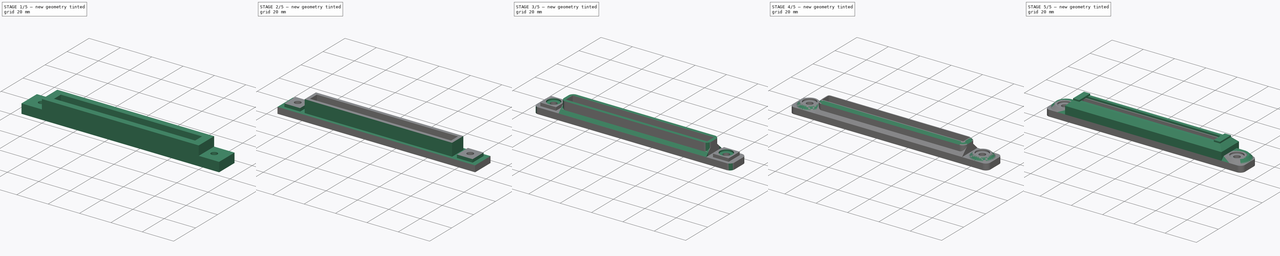
[diagram: build sequence overview — one tinted view per stage of 5, left to right]
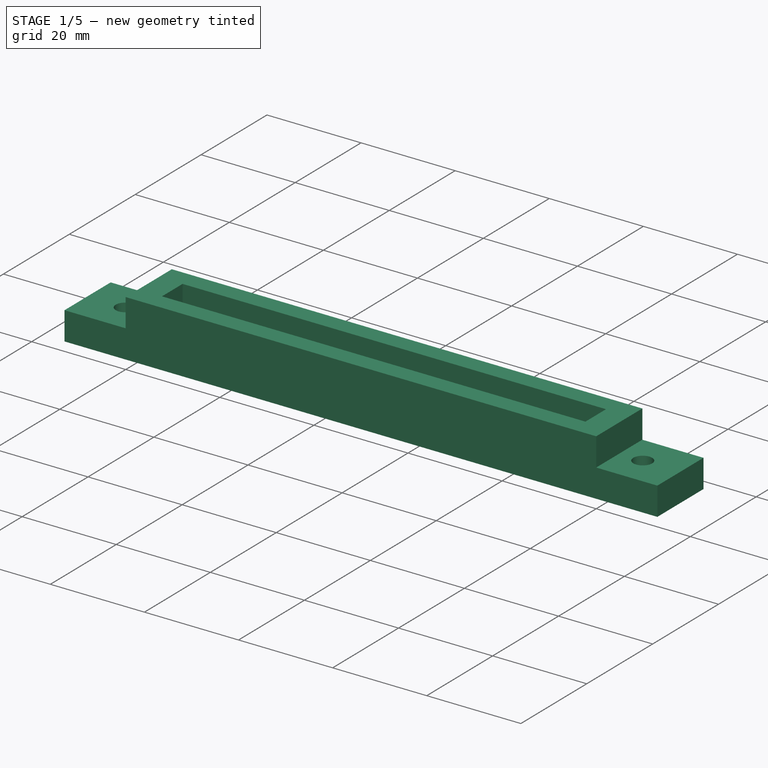
[diagram: stage 1 of 5 — iso view after this stage's code; geometry added in this stage tinted green]
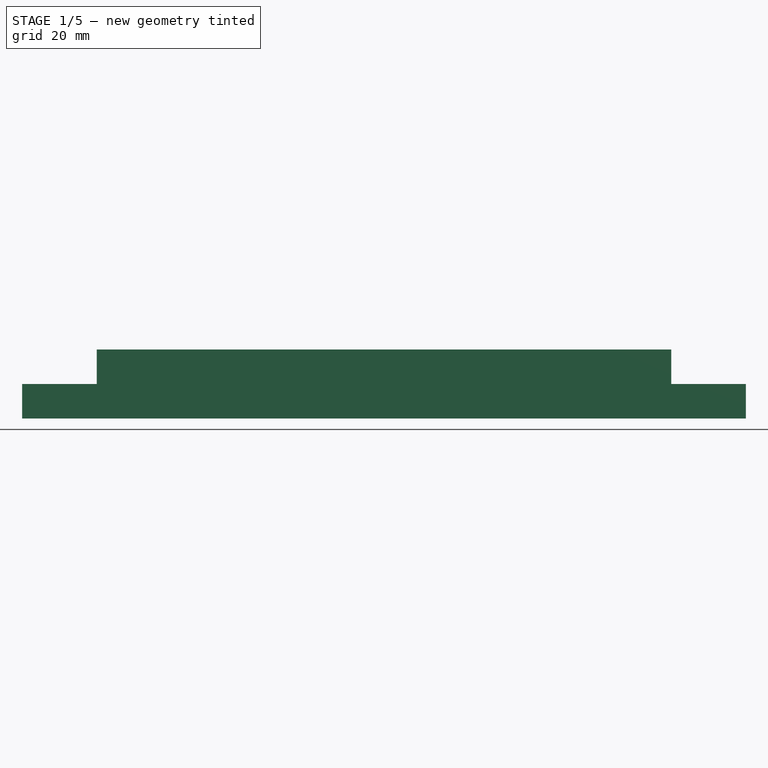
[diagram: stage 1 of 5 — front view after this stage's code; geometry added in this stage tinted green]
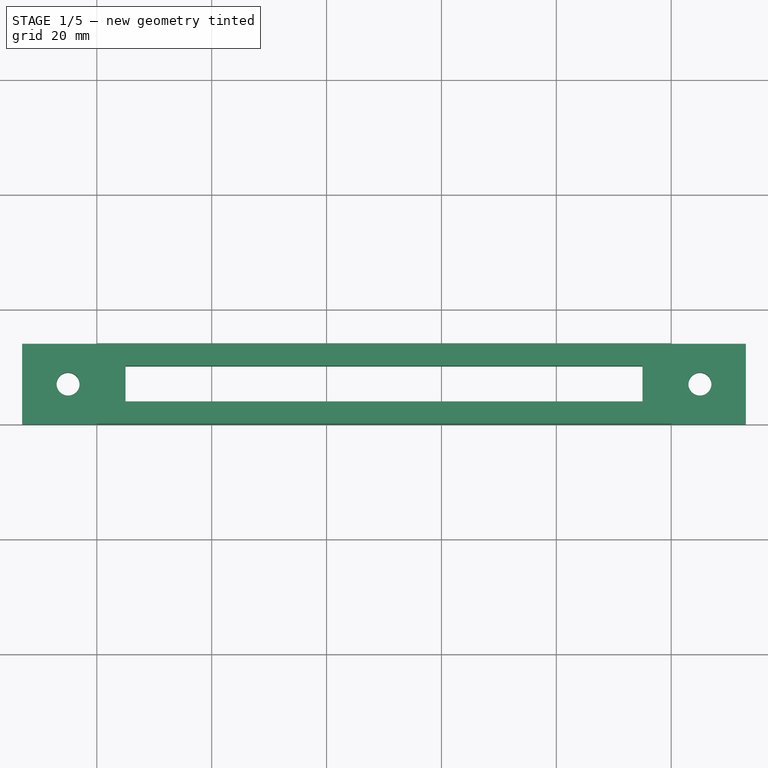
[diagram: stage 1 of 5 — top view after this stage's code; geometry added in this stage tinted green]
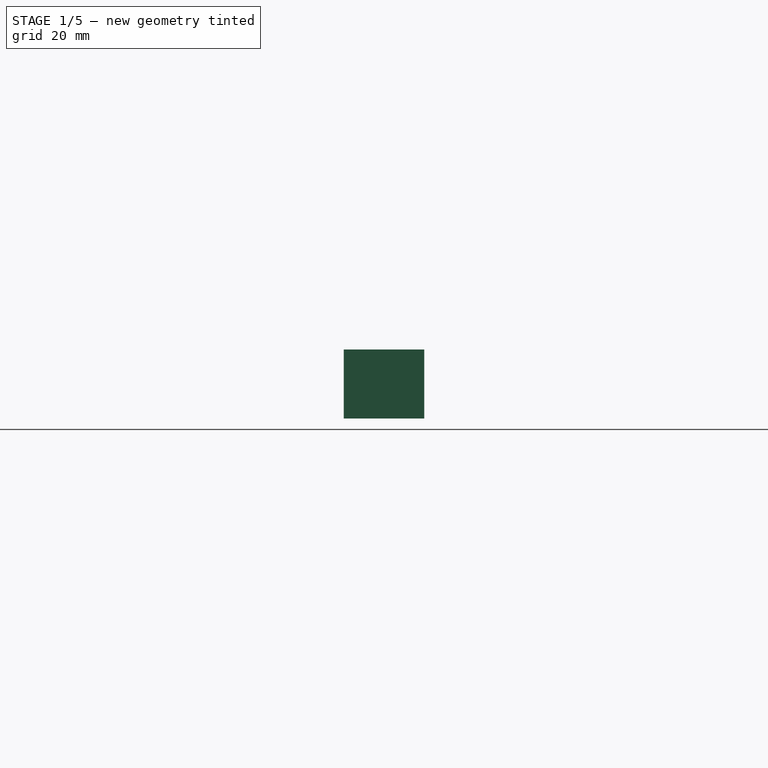
[diagram: stage 1 of 5 — right view after this stage's code; geometry added in this stage tinted green]
FCSTD DOCUMENT  (FreeCAD 0.17R13662 (Git))
Label: wiper_mount_v2.1
License: CreativeCommons Attribution-ShareAlike
LicenseURL: http://creativecommons.org/licenses/by-sa/4.0/
objects: Sketcher::SketchObject×6, PartDesign::Pocket×6, PartDesign::Fillet×4, PartDesign::Chamfer×3, PartDesign::Pad×2, Part::FeaturePython×1, PartDesign::Body×1
note: 31 computed .brp shape members not serialized (recipe doc carries the construction recipe); baked Part::Feature solids carry a one-line shape summary decoded from their .brp

FEATURE [Sketcher::SketchObject] Sketch
  MapMode = 5
  Support = -> [XY_Plane]
  sketch-geometry (10):
    g0: LineSegment StartX=-13 StartY=14 StartZ=0 EndX=113 EndY=14 EndZ=0
    g1: LineSegment StartX=113 StartY=14 StartZ=0 EndX=113 EndY=0 EndZ=0
    g2: LineSegment StartX=113 StartY=0 StartZ=0 EndX=-13 EndY=0 EndZ=0
    g3: LineSegment StartX=-13 StartY=0 StartZ=0 EndX=-13 EndY=14 EndZ=0
    g4: LineSegment StartX=95 StartY=10.125 StartZ=0 EndX=5 EndY=10.125 EndZ=0
    g5: LineSegment StartX=5 StartY=10.125 StartZ=0 EndX=5 EndY=3.875 EndZ=0
    g6: LineSegment StartX=5 StartY=3.875 StartZ=0 EndX=95 EndY=3.875 EndZ=0
    g7: LineSegment StartX=95 StartY=3.875 StartZ=0 EndX=95 EndY=10.125 EndZ=0
    g8: Circle CenterX=-5 CenterY=7 CenterZ=0 NormalX=0 NormalY=0 NormalZ=1 AngleXU=0 Radius=2
    g9: Circle CenterX=105 CenterY=7 CenterZ=0 NormalX=0 NormalY=0 NormalZ=1 AngleXU=0 Radius=2
  constraints (30):
    c: Coincident(g0,g1)
    c: Coincident(g1,g2)
    c: Coincident(g2,g3)
    c: Coincident(g3,g0)
    c: Horizontal(g0)
    c: Horizontal(g2)
    c: Vertical(g1)
    c: Vertical(g3)
    c: PointOnObject(g1,g-1)
    c: DistanceX(g2,g-1) = 13
    c: DistanceY(g3,g3) = 14
    c: DistanceX(g0) = 113
    c: Coincident(g4,g5)
    c: Coincident(g5,g6)
    c: Coincident(g6,g7)
    c: Coincident(g7,g4)
    c: Horizontal(g4)
    c: Horizontal(g6)
    c: Vertical(g5)
    c: Vertical(g7)
    c: DistanceX(g5) = 5
    c: DistanceY(g5) = 3.875
    c: DistanceY(g7,g7) = 6.25
    c: DistanceX(g4,g4) = 90
    c: DistanceX(g9,g0) = 8
    c: DistanceY(g9,g0) = 7
    c: DistanceX(g8,g0) = -8
    c: DistanceY(g8,g0) = 7
    c: Radius(g8) = 2
    c: Equal(g8,g9)
FEATURE [PartDesign::Pad] Pad
  Length = 13
  Length2 = 100
  Profile = -> Sketch
  Type = 0
FEATURE [Sketcher::SketchObject] Sketch001
  ExternalGeometry = -> [Pad]
  MapMode = 5
  Placement = pos=(0,0,13) rot=(0,0,1;0rad)
  Support = -> [Pad]
  sketch-geometry (8):
    g0: LineSegment StartX=113 StartY=14 StartZ=0 EndX=100 EndY=14 EndZ=0
    g1: LineSegment StartX=100 StartY=14 StartZ=0 EndX=100 EndY=0 EndZ=0
    g2: LineSegment StartX=100 StartY=0 StartZ=0 EndX=113 EndY=0 EndZ=0
    g3: LineSegment StartX=113 StartY=0 StartZ=0 EndX=113 EndY=14 EndZ=0
    g4: LineSegment StartX=-13 StartY=14 StartZ=0 EndX=0 EndY=14 EndZ=0
    g5: LineSegment StartX=0 StartY=14 StartZ=0 EndX=0 EndY=0 EndZ=0
    g6: LineSegment StartX=0 StartY=0 StartZ=0 EndX=-13 EndY=0 EndZ=0
    g7: LineSegment StartX=-13 StartY=0 StartZ=0 EndX=-13 EndY=14 EndZ=0
  constraints (21):
    c: Coincident(g0,g1)
    c: Coincident(g1,g2)
    c: Coincident(g2,g3)
    c: Coincident(g3,g0)
    c: Horizontal(g0)
    c: Horizontal(g2)
    c: Vertical(g1)
    c: Vertical(g3)
    c: Coincident(g0,g-5)
    c: PointOnObject(g1,g-1)
    c: Coincident(g4,g5)
    c: Coincident(g5,g6)
    c: Coincident(g6,g7)
    c: Coincident(g7,g4)
    c: Horizontal(g4)
    c: Horizontal(g6)
    c: Vertical(g5)
    c: Vertical(g7)
    c: Coincident(g4,g-4)
    c: Coincident(g5,g-1)
    c: Equal(g0,g4)
FEATURE [PartDesign::Pocket] Pocket
  BaseFeature = -> Pad
  Length = 7
  Length2 = 100
  Profile = -> Sketch001
  Type = 0
FEATURE [PartDesign::Pocket] Pocket001
  BaseFeature = -> Pocket
  Length = 1
  Length2 = 100
  Profile = -> Pocket [Face6]
  Type = 0
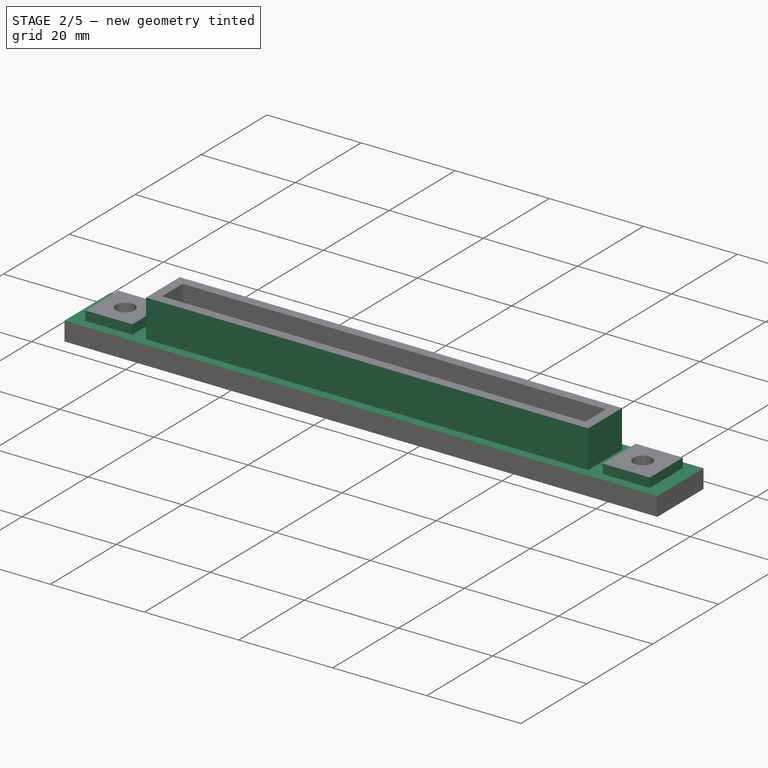
[diagram: stage 2 of 5 — iso view after this stage's code; geometry added in this stage tinted green]
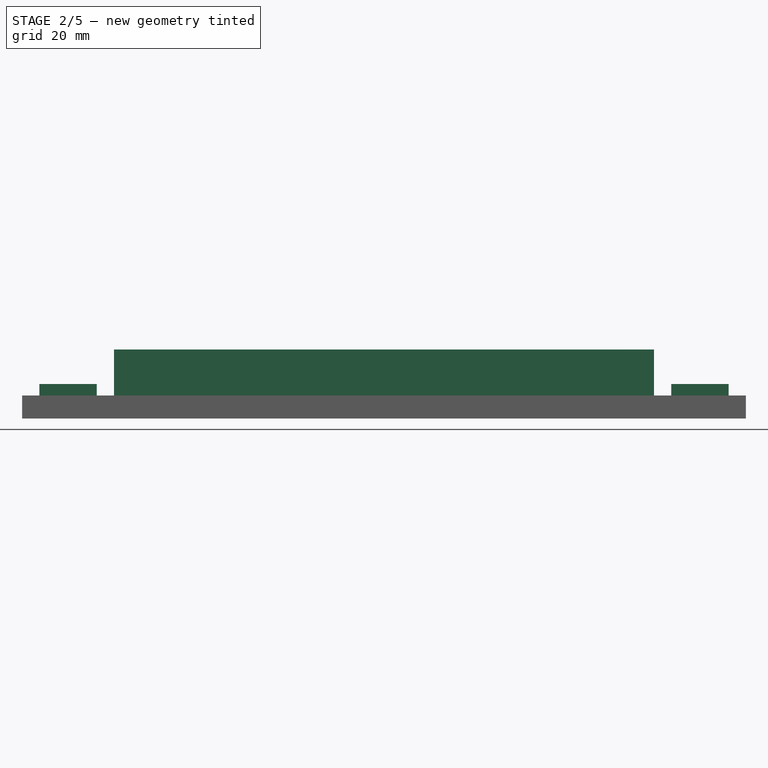
[diagram: stage 2 of 5 — front view after this stage's code; geometry added in this stage tinted green]
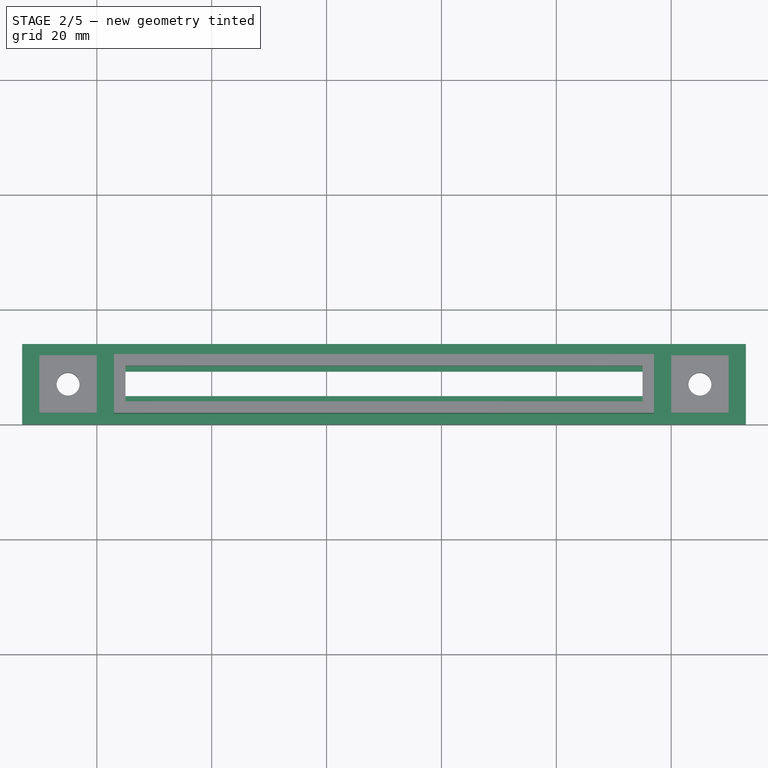
[diagram: stage 2 of 5 — top view after this stage's code; geometry added in this stage tinted green]
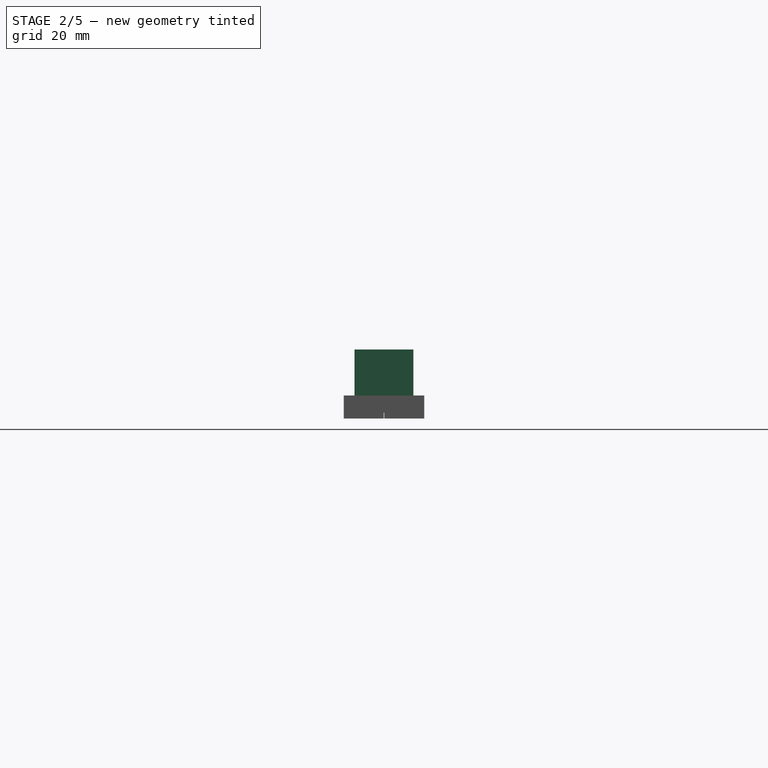
[diagram: stage 2 of 5 — right view after this stage's code; geometry added in this stage tinted green]
FEATURE [Sketcher::SketchObject] Sketch004
  ExternalGeometry = -> [Pocket001]
  MapMode = 5
  Placement = pos=(0,0,12) rot=(0,0,1;0rad)
  sketch-geometry (16):
    g0: LineSegment StartX=3 StartY=1.875 StartZ=0 EndX=97 EndY=1.875 EndZ=0
    g1: LineSegment StartX=97 StartY=1.875 StartZ=0 EndX=97 EndY=12.125 EndZ=0
    g2: LineSegment StartX=97 StartY=12.125 StartZ=0 EndX=3 EndY=12.125 EndZ=0
    g3: LineSegment StartX=3 StartY=12.125 StartZ=0 EndX=3 EndY=1.875 EndZ=0
    g4: LineSegment StartX=-13 StartY=14 StartZ=0 EndX=113 EndY=14 EndZ=0
    g5: LineSegment StartX=113 StartY=0 StartZ=0 EndX=-13 EndY=0 EndZ=0
    g6: LineSegment StartX=110 StartY=12 StartZ=0 EndX=100 EndY=12 EndZ=0
    g7: LineSegment StartX=100 StartY=12 StartZ=0 EndX=100 EndY=2 EndZ=0
    g8: LineSegment StartX=100 StartY=2 StartZ=0 EndX=110 EndY=2 EndZ=0
    g9: LineSegment StartX=110 StartY=2 StartZ=0 EndX=110 EndY=12 EndZ=0
    g10: LineSegment StartX=-10 StartY=12 StartZ=0 EndX=0 EndY=12 EndZ=0
    g11: LineSegment StartX=0 StartY=12 StartZ=0 EndX=0 EndY=2 EndZ=0
    g12: LineSegment StartX=0 StartY=2 StartZ=0 EndX=-10 EndY=2 EndZ=0
    g13: LineSegment StartX=-10 StartY=2 StartZ=0 EndX=-10 EndY=12 EndZ=0
    g14: LineSegment StartX=113 StartY=14 StartZ=0 EndX=113 EndY=0 EndZ=0
    g15: LineSegment StartX=-13 StartY=14 StartZ=0 EndX=-13 EndY=0 EndZ=0
  constraints (46):
    c: Coincident(g0,g1)
    c: Coincident(g1,g2)
    c: Coincident(g2,g3)
    c: Coincident(g3,g0)
    c: Horizontal(g0)
    c: Horizontal(g2)
    c: Vertical(g1)
    c: Vertical(g3)
    c: Horizontal(g4)
    c: Horizontal(g5)
    c: DistanceX(g-6,g2) = -2
    c: DistanceY(g-6,g2) = 2
    c: DistanceX(g0,g-5) = -2
    c: DistanceY(g0,g-5) = 2
    c: Coincident(g5,g-8)
    c: Coincident(g6,g7)
    c: Coincident(g7,g8)
    c: Coincident(g8,g9)
    c: Coincident(g9,g6)
    c: Horizontal(g6)
    c: Horizontal(g8)
    c: Vertical(g7)
    c: Vertical(g9)
    c: Coincident(g10,g11)
    c: Coincident(g11,g12)
    c: Coincident(g12,g13)
    c: Coincident(g13,g10)
    c: Horizontal(g10)
    c: Horizontal(g12)
    c: Vertical(g11)
    c: Vertical(g13)
    c: DistanceY(g10,g4) = 2
    c: Coincident(g4,g-8)
    c: DistanceY(g5,g12) = 2
    c: DistanceX(g10,g10) = 10
    c: DistanceY(g5,g8) = 2
    c: DistanceY(g6,g4) = 2
    c: DistanceX(g6,g6) = 10
    c: Coincident(g5,g-7)
    c: Coincident(g4,g-7)
    c: DistanceX(g6,g4) = 3
    c: Coincident(g5,g14)
    c: Coincident(g4,g14)
    c: DistanceX(g4,g10) = 3
    c: Coincident(g5,g15)
    c: Coincident(g4,g15)
FEATURE [PartDesign::Pocket] Pocket002
  BaseFeature = -> Pocket001
  Length = 8
  Length2 = 100
  Profile = -> Sketch004
  Type = 0
FEATURE [Sketcher::SketchObject] Sketch007
  ExternalGeometry = -> [Pocket002]
  MapMode = 5
  Placement = pos=(0,0,0) rot=(1,0,0;3.14159rad)
  sketch-geometry (4):
    g0: LineSegment StartX=113 StartY=-6.95 StartZ=0 EndX=-13 EndY=-6.95 EndZ=0
    g1: LineSegment StartX=-13 StartY=-6.95 StartZ=0 EndX=-13 EndY=-7.05 EndZ=0
    g2: LineSegment StartX=-13 StartY=-7.05 StartZ=0 EndX=113 EndY=-7.05 EndZ=0
    g3: LineSegment StartX=113 StartY=-7.05 StartZ=0 EndX=113 EndY=-6.95 EndZ=0
  constraints (12):
    c: Coincident(g0,g1)
    c: Coincident(g1,g2)
    c: Coincident(g2,g3)
    c: Coincident(g3,g0)
    c: Horizontal(g0)
    c: Horizontal(g2)
    c: Vertical(g1)
    c: Vertical(g3)
    c: DistanceY(g3,g3) = 0.1
    c: DistanceX(g0,g0) = 126
    c: DistanceY(g-4,g0) = 0.05
    c: PointOnObject(g0,g-3)
FEATURE [PartDesign::Pocket] Pocket003
  BaseFeature = -> Pocket002
  Length = 1
  Length2 = 100
  Profile = -> Sketch007
  Type = 0
FEATURE [Sketcher::SketchObject] Sketch008
  ExternalGeometry = -> [Pocket003]
  MapMode = 5
  Placement = pos=(5,0,0) rot=(0.57735,0.57735,0.57735;2.0944rad)
  Support = -> [Pocket003]
  sketch-geometry (10):
    g0: LineSegment StartX=3.875 StartY=7 StartZ=0 EndX=4.875 EndY=7 EndZ=0
    g1: LineSegment StartX=4.875 StartY=7 StartZ=0 EndX=3.875 EndY=6 EndZ=0
    g2: LineSegment StartX=3.875 StartY=6 StartZ=0 EndX=3.875 EndY=7 EndZ=0
    g3: LineSegment StartX=10.125 StartY=7 StartZ=0 EndX=9.125 EndY=7 EndZ=0
    g4: LineSegment StartX=9.125 StartY=7 StartZ=0 EndX=10.125 EndY=6 EndZ=0
    g5: LineSegment StartX=10.125 StartY=6 StartZ=0 EndX=10.125 EndY=7 EndZ=0
    g6: LineSegment [constr] StartX=3.875 StartY=12 StartZ=0 EndX=10.125 EndY=12 EndZ=0
    g7: LineSegment [constr] StartX=10.125 StartY=12 StartZ=0 EndX=10.125 EndY=7 EndZ=0
    g8: LineSegment [constr] StartX=10.125 StartY=7 StartZ=0 EndX=3.875 EndY=7 EndZ=0
    g9: LineSegment [constr] StartX=3.875 StartY=7 StartZ=0 EndX=3.875 EndY=12 EndZ=0
  constraints (28):
    c: Coincident(g0,g1)
    c: Coincident(g1,g2)
    c: Coincident(g3,g4)
    c: Coincident(g4,g5)
    c: Coincident(g3,g5)
    c: PointOnObject(g4,g-4)
    c: PointOnObject(g1,g-3)
    c: Coincident(g0,g2)
    c: Vertical(g2)
    c: Vertical(g5)
    c: Horizontal(g3)
    c: Horizontal(g0)
    c: DistanceY(g5,g5) = 1
    c: Equal(g2,g5)
    c: Coincident(g6,g7)
    c: Coincident(g7,g8)
    c: Coincident(g8,g9)
    c: Coincident(g9,g6)
    c: Horizontal(g6)
    c: Horizontal(g8)
    c: Vertical(g7)
    c: Vertical(g9)
    c: Coincident(g6,g-4)
    c: Coincident(g0,g8)
    c: Coincident(g3,g7)
    c: DistanceY(g9,g9) = 5
    c: DistanceX(g0,g0) = 1
    c: Equal(g3,g0)
FEATURE [PartDesign::Pad] Pad001
  BaseFeature = -> Pocket003
  Length = 90
  Length2 = 100
  Profile = -> Sketch008
  Type = 0
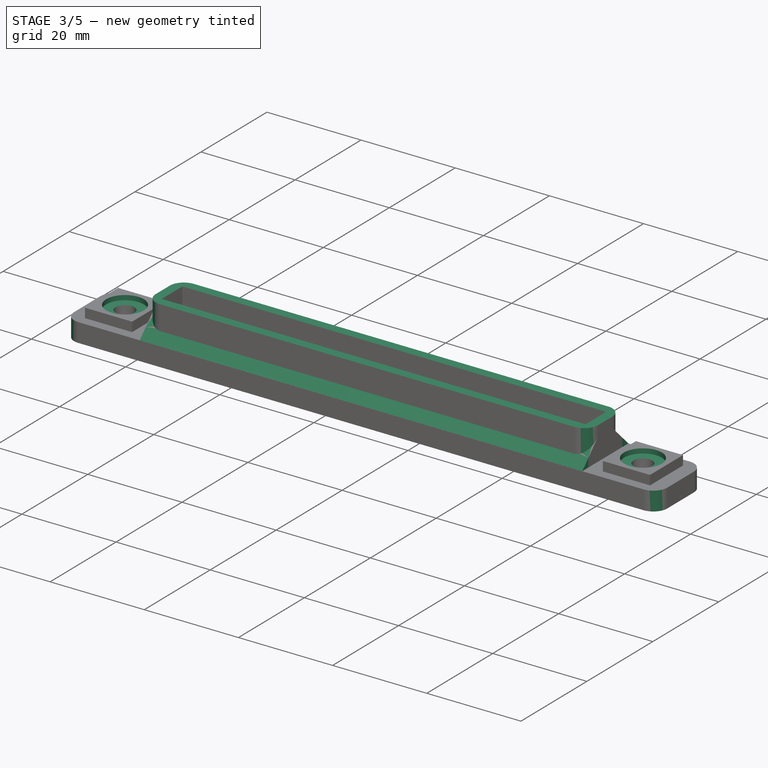
[diagram: stage 3 of 5 — iso view after this stage's code; geometry added in this stage tinted green]
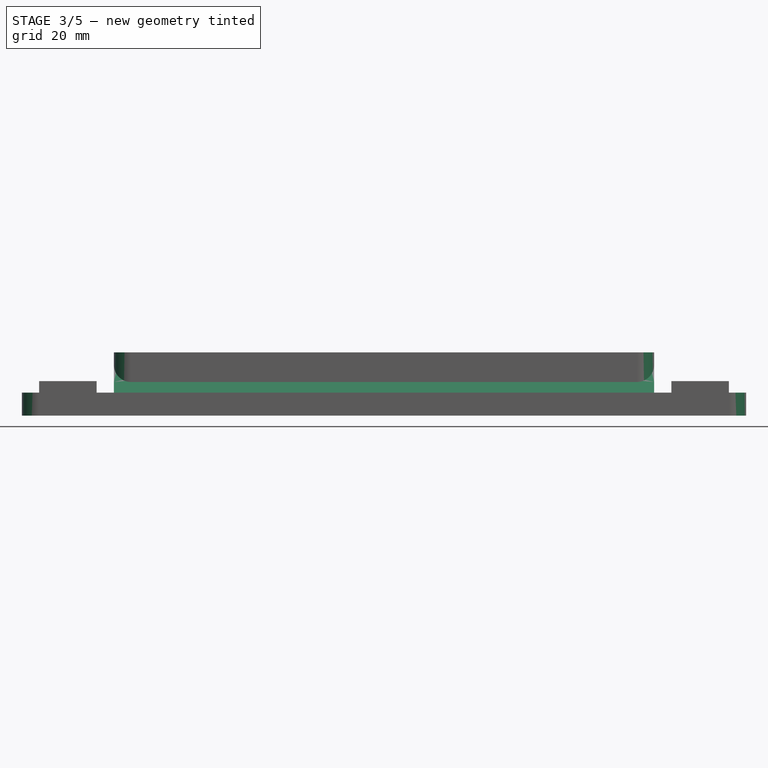
[diagram: stage 3 of 5 — front view after this stage's code; geometry added in this stage tinted green]
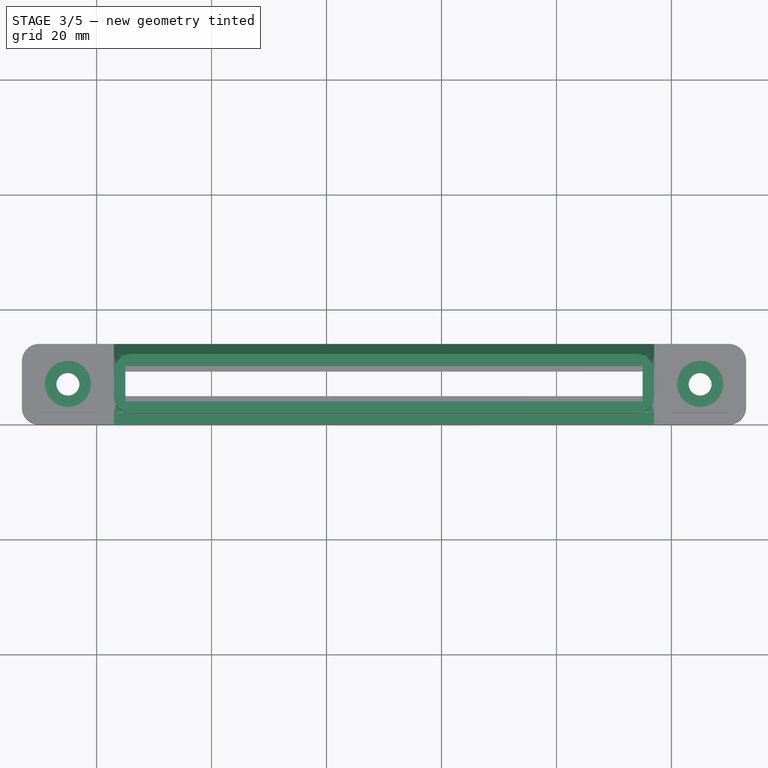
[diagram: stage 3 of 5 — top view after this stage's code; geometry added in this stage tinted green]
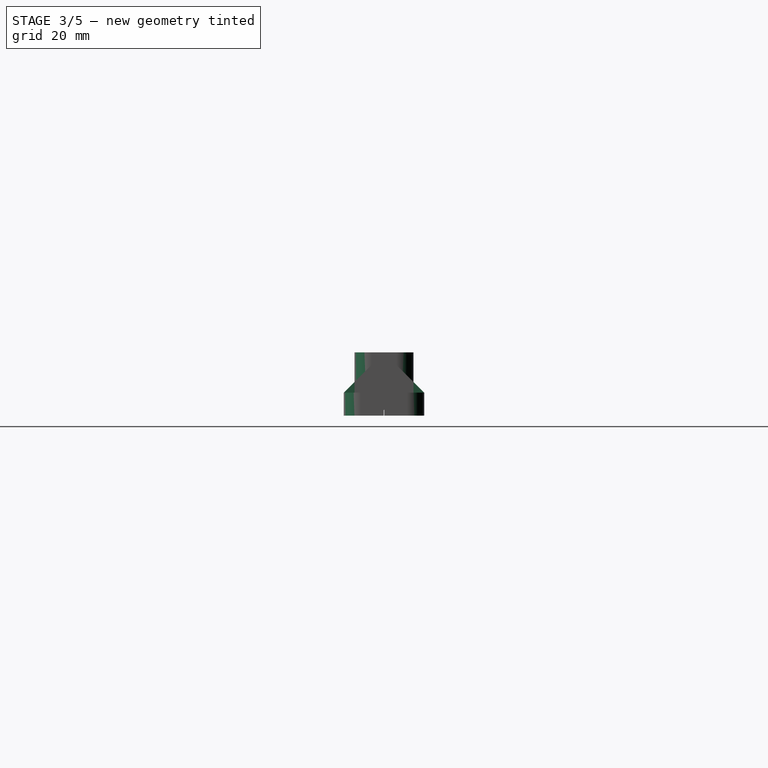
[diagram: stage 3 of 5 — right view after this stage's code; geometry added in this stage tinted green]
FEATURE [Sketcher::SketchObject] Sketch009
  MapMode = 5
  Placement = pos=(0,0,6) rot=(0,0,1;0rad)
  sketch-geometry (2):
    g0: Circle CenterX=-5 CenterY=7 CenterZ=0 NormalX=0 NormalY=0 NormalZ=1 AngleXU=0 Radius=4
    g1: Circle CenterX=105 CenterY=7 CenterZ=0 NormalX=0 NormalY=0 NormalZ=1 AngleXU=0 Radius=4
  constraints (6):
    c: Radius(g0) = 4
    c: Equal(g0,g1)
    c: DistanceX(g0) = -5
    c: DistanceY(g0) = 7
    c: DistanceX(g1,g0) = -110
    c: DistanceY(g1,g0) = 0
FEATURE [PartDesign::Pocket] Pocket004
  BaseFeature = -> Pad001
  Length = 1
  Length2 = 100
  Profile = -> Sketch009
  Type = 0
FEATURE [PartDesign::Pocket] Pocket005
  BaseFeature = -> Pocket004
  Length = 1
  Length2 = 100
  Profile = -> Pocket004 [Face40]
  Type = 0
FEATURE [PartDesign::Chamfer] Chamfer
  Base = -> Pocket005 [Edge27,Edge24]
  BaseFeature = -> Pocket005
  Size = 1.85
FEATURE [PartDesign::Fillet] Fillet
  Base = -> Chamfer [Edge21,Edge24,Edge31,Edge28,Edge41,Edge35,Edge47,Edge34]
  BaseFeature = -> Chamfer
  Radius = 3
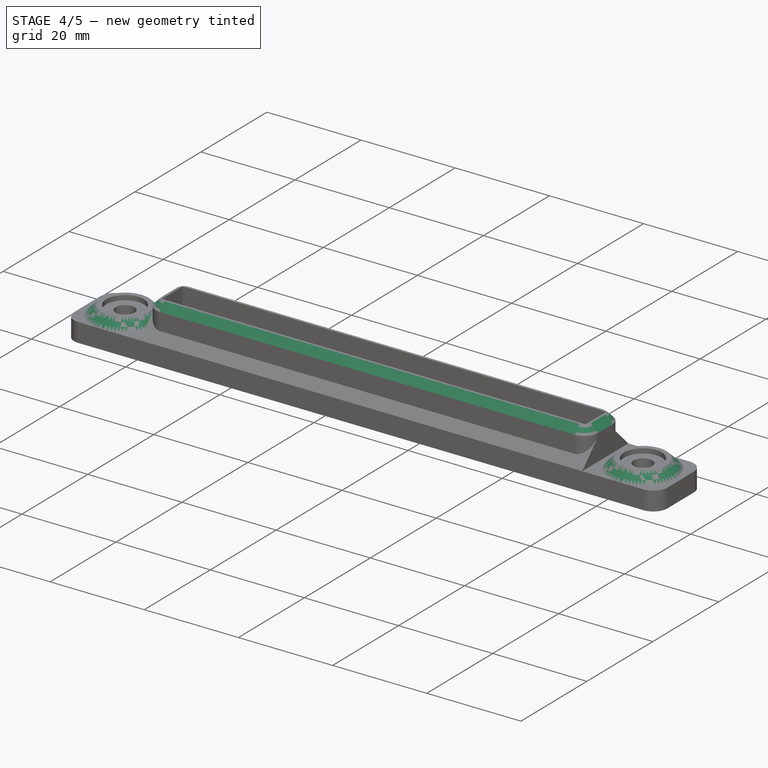
[diagram: stage 4 of 5 — iso view after this stage's code; geometry added in this stage tinted green]
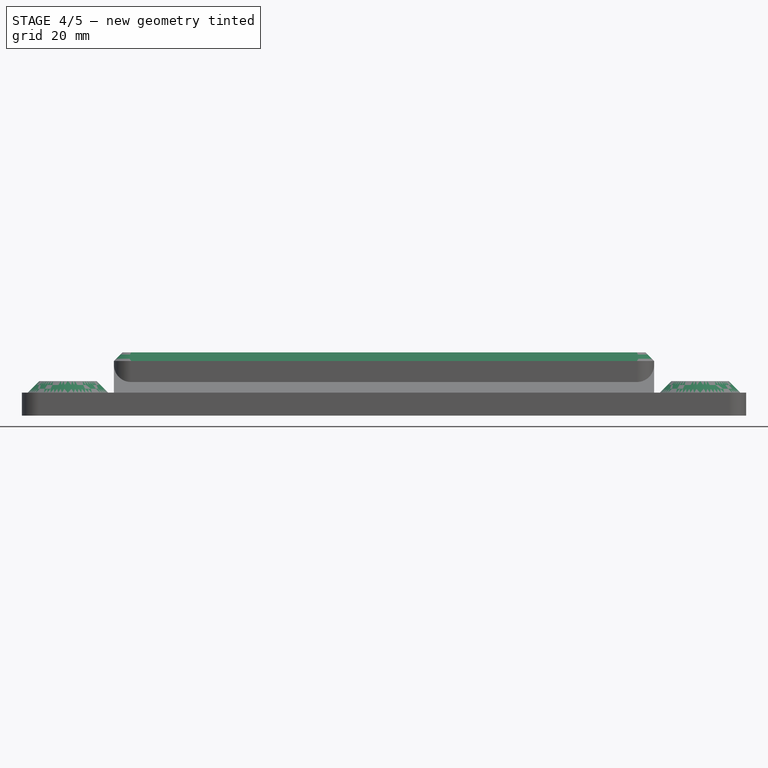
[diagram: stage 4 of 5 — front view after this stage's code; geometry added in this stage tinted green]
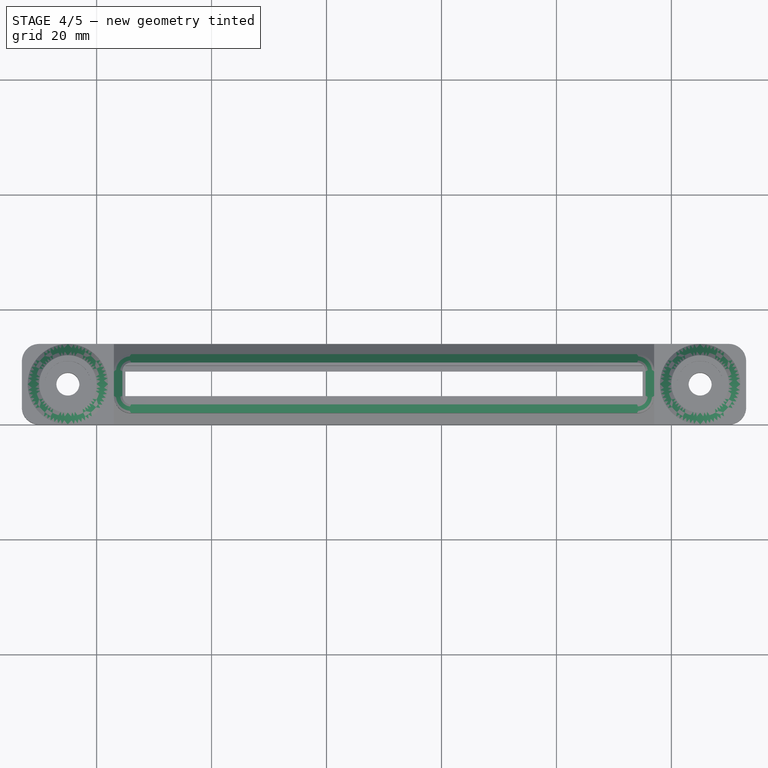
[diagram: stage 4 of 5 — top view after this stage's code; geometry added in this stage tinted green]
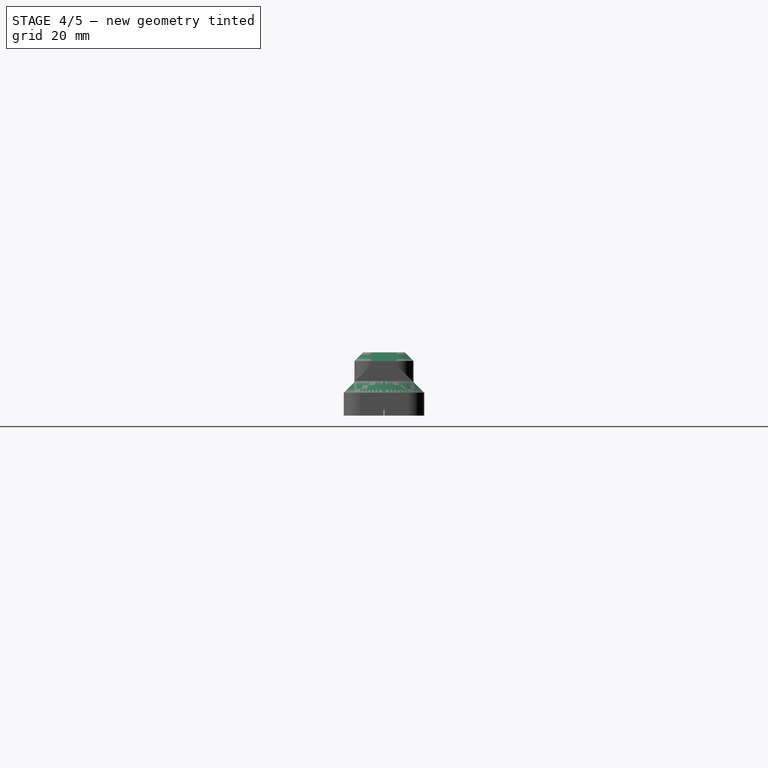
[diagram: stage 4 of 5 — right view after this stage's code; geometry added in this stage tinted green]
FEATURE [PartDesign::Fillet] Fillet001
  Base = -> Fillet [Edge79,Edge78,Edge81,Edge83,Edge73,Edge71,Edge70,Edge75]
  BaseFeature = -> Fillet
  Radius = 4.99
FEATURE [PartDesign::Chamfer] Chamfer001
  Base = -> Fillet001 [Edge7,Edge26]
  BaseFeature = -> Fillet001
  Size = 1.99
FEATURE [PartDesign::Chamfer] Chamfer002
  Base = -> Chamfer001 [Edge157]
  BaseFeature = -> Chamfer001
  Size = 1.49
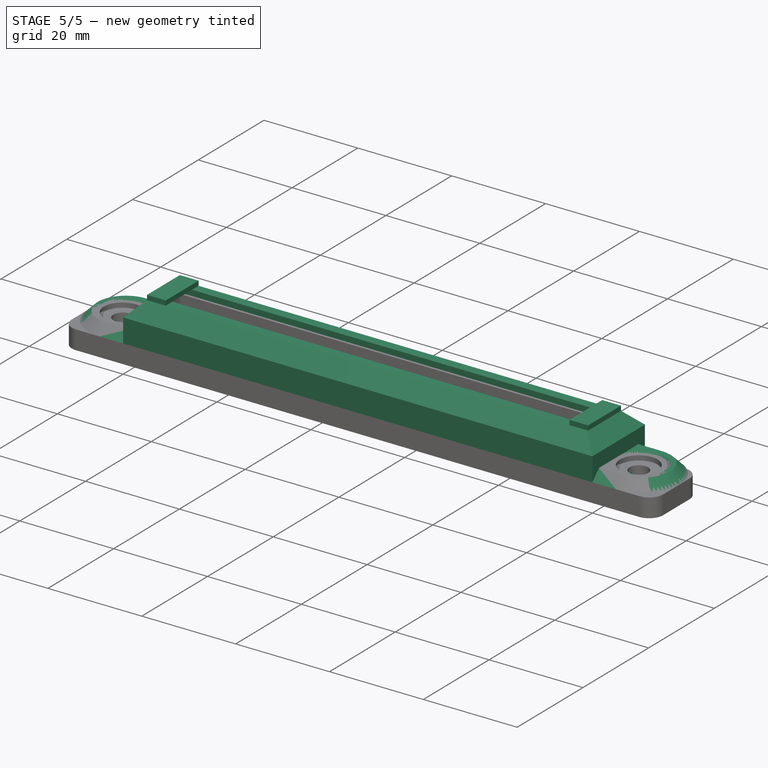
[diagram: stage 5 of 5 — iso view after this stage's code; geometry added in this stage tinted green]
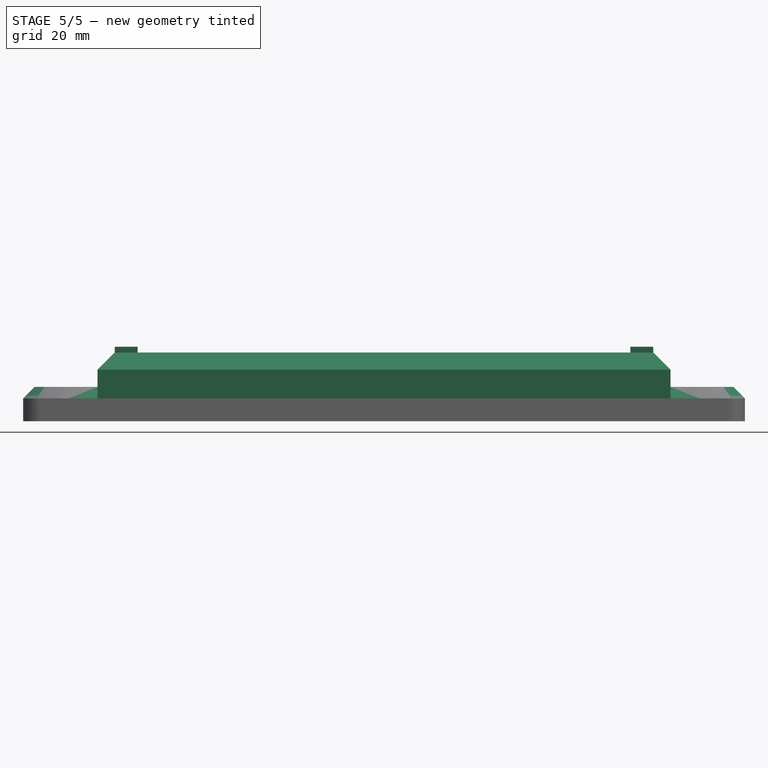
[diagram: stage 5 of 5 — front view after this stage's code; geometry added in this stage tinted green]
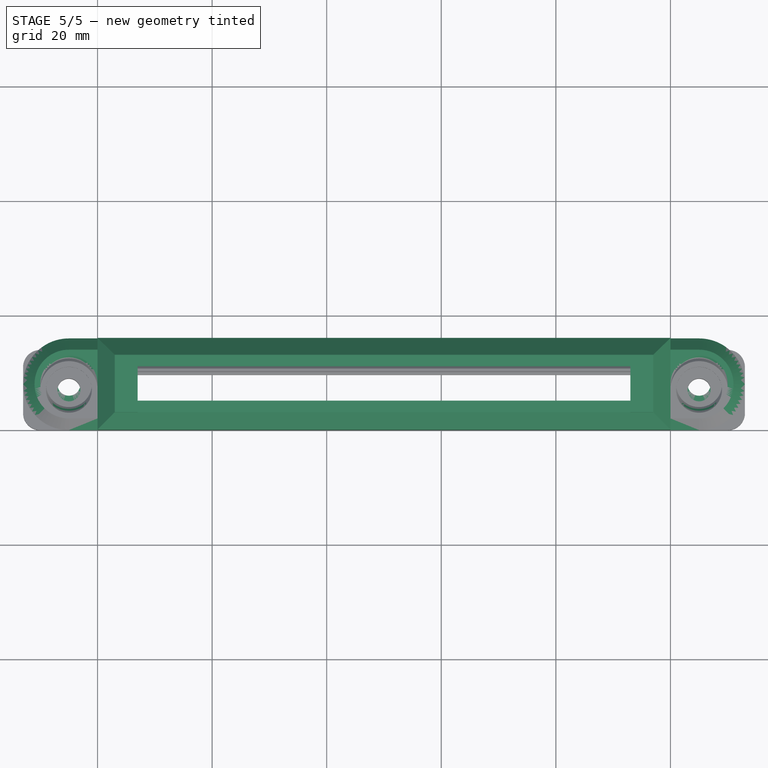
[diagram: stage 5 of 5 — top view after this stage's code; geometry added in this stage tinted green]
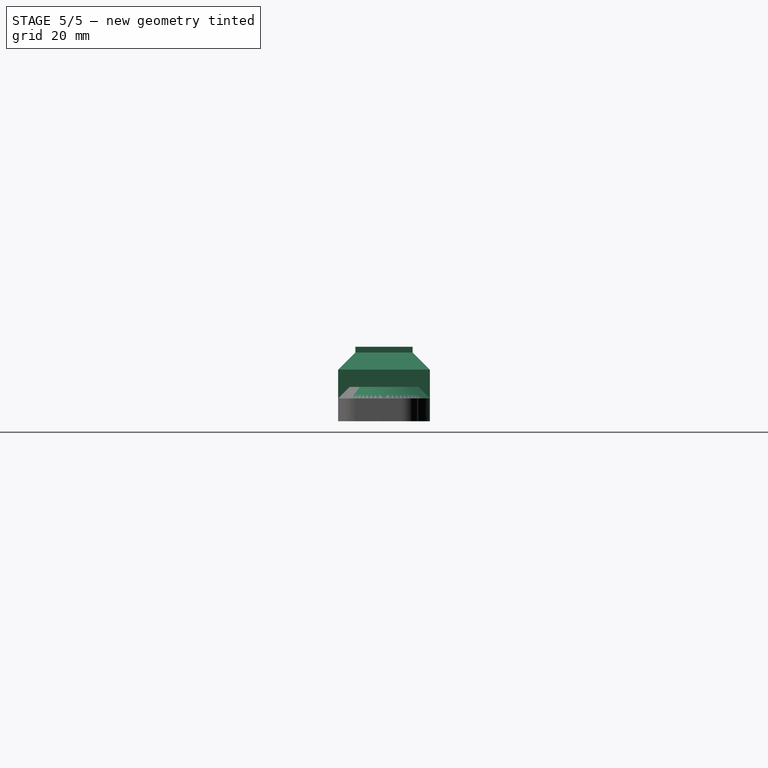
[diagram: stage 5 of 5 — right view after this stage's code; geometry added in this stage tinted green]
FEATURE [Part::FeaturePython] wiper_mount_v1_1_01  # a2plus imported part (geometry in sourceFile) (typed FeaturePython)
  fixedPosition = true
  sourceFile = <userpath>/Projects/taz-quiver/Production_parts/Printed_parts/Y/wiper_mount/wiper_mount_v1.1.fcstd
  timeLastImport = 1.52227e+09
  updateColors = true
FEATURE [PartDesign::Fillet] Fillet002
  Base = -> Chamfer002 [Edge224,Edge231]
  BaseFeature = -> Chamfer002
  Radius = 0.3
FEATURE [PartDesign::Fillet] Fillet003
  Base = -> Fillet002 [Edge19,Edge74]
  BaseFeature = -> Fillet002
  Radius = 1
FEATURE [PartDesign::Body] Body
  Group = -> [Sketch,Pad,Sketch001,Pocket,Sketch004,Pocket001,Pocket002,Sketch007,Pocket003,Sketch008,Pad001,Sketch009,Pocket004,Pocket005,Chamfer,Fillet,Fillet001,Chamfer001,Chamfer002,Fillet002,Fillet003]
  Origin = -> Origin
  Tip = -> Fillet003
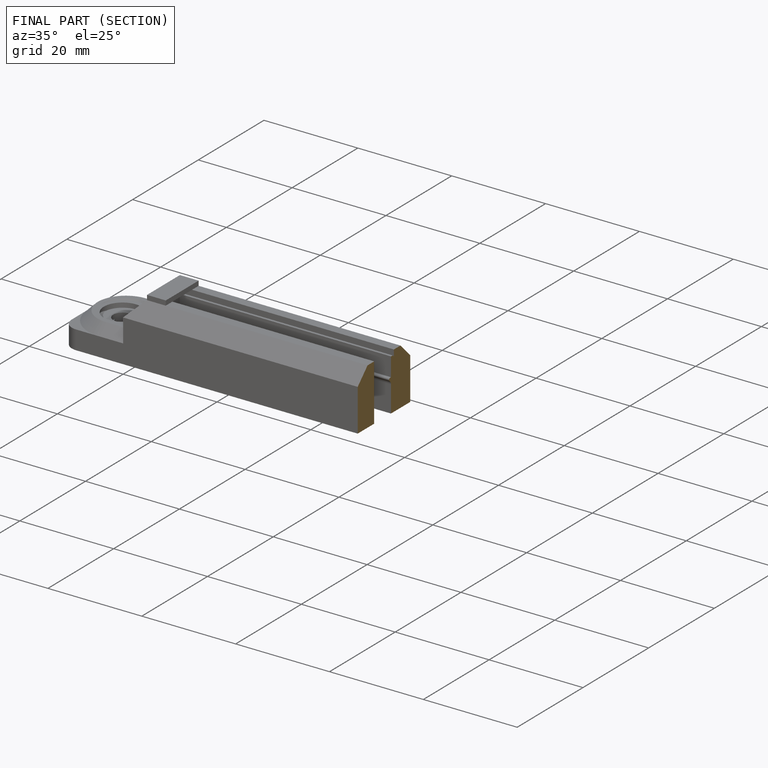
[diagram: finished part — half-section view (interior)]
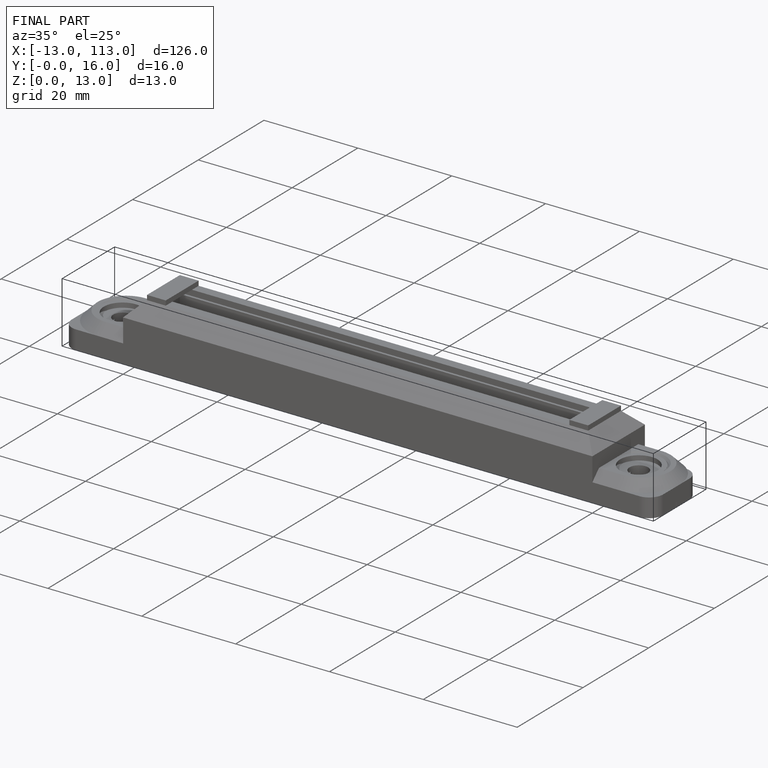
[diagram: finished part — iso view with bounding-box wireframe]
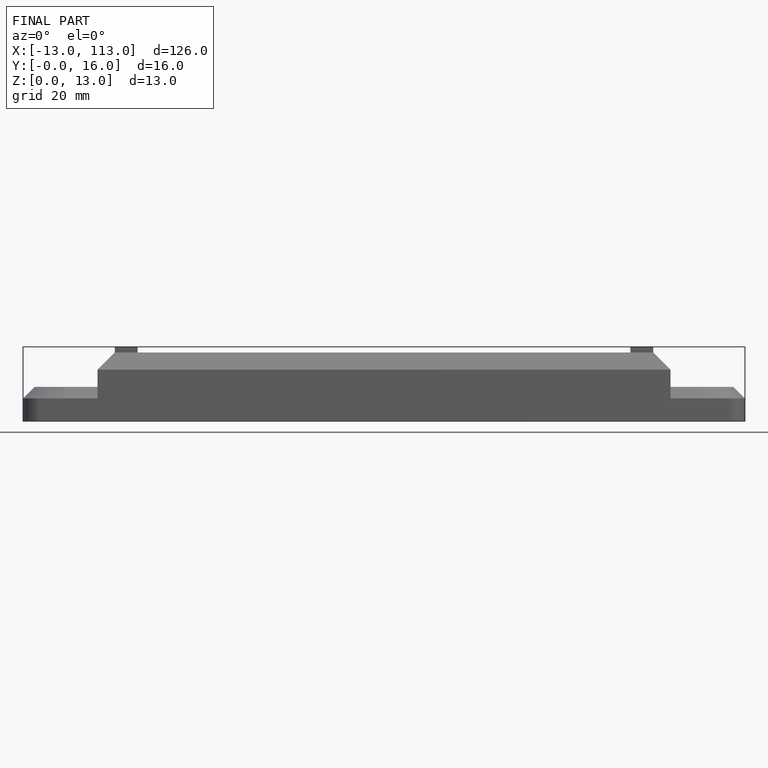
[diagram: finished part — front view with bounding-box wireframe]
